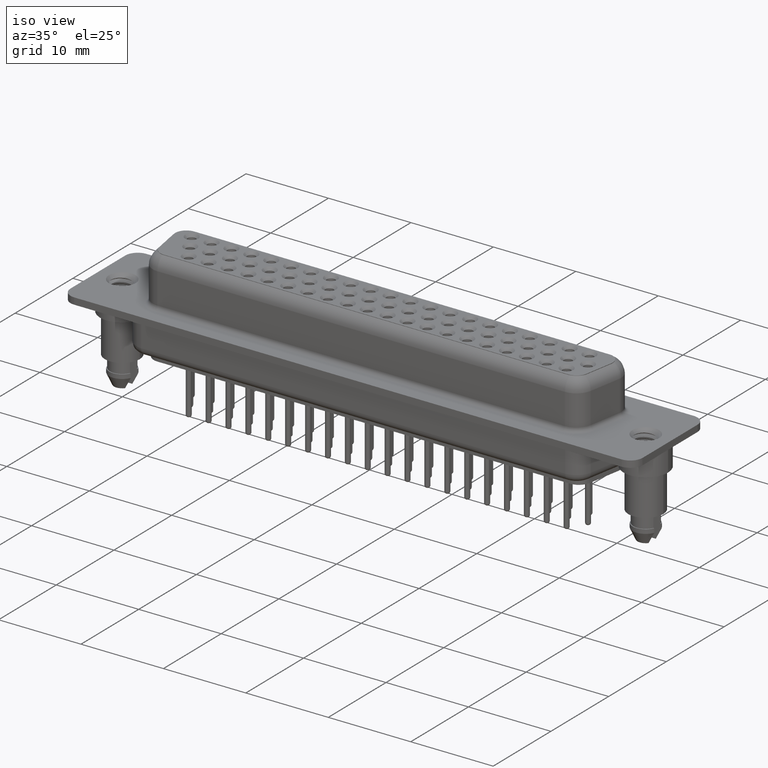
[diagram: clean part render]
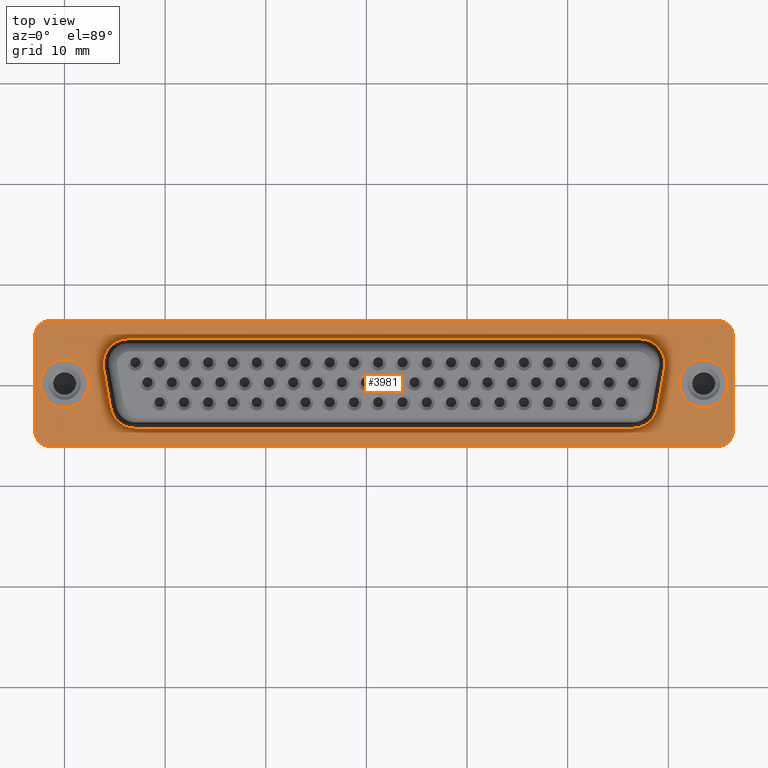
[diagram: tour spotlight — one face highlighted and labeled with its STEP entity id]
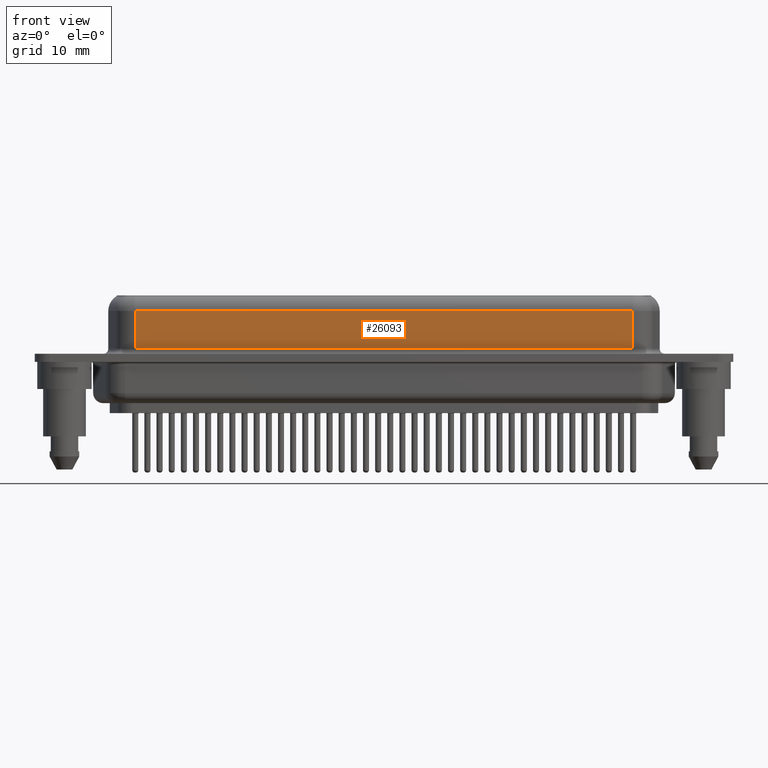
[diagram: tour spotlight — one face highlighted and labeled with its STEP entity id]
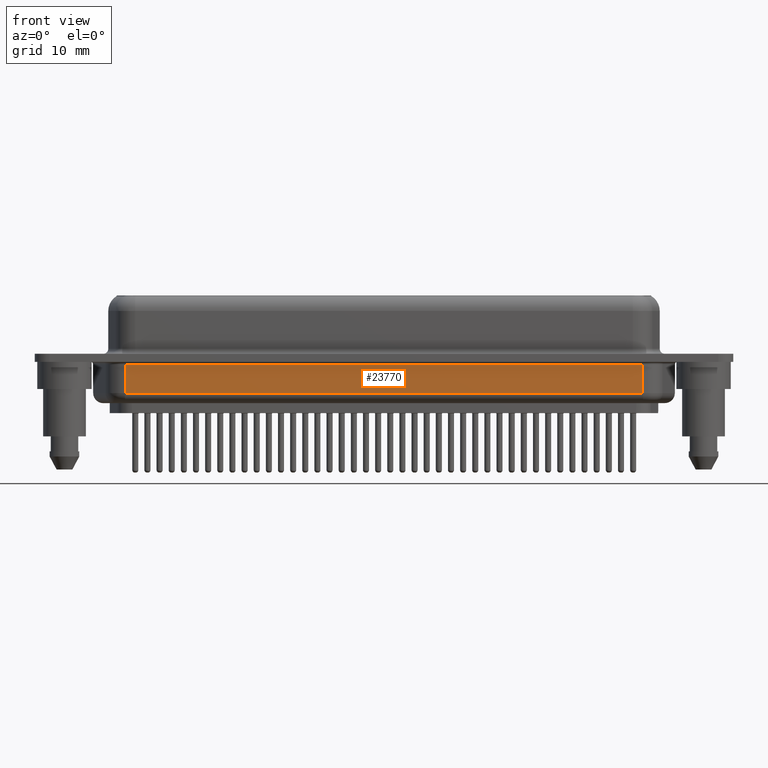
[diagram: tour spotlight — one face highlighted and labeled with its STEP entity id]
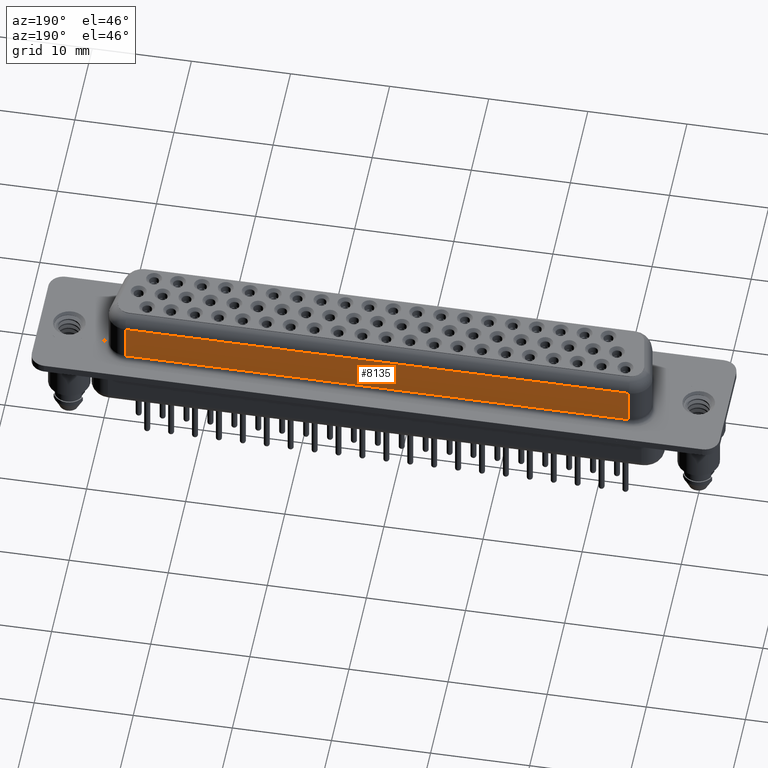
[diagram: tour spotlight — one face highlighted and labeled with its STEP entity id]
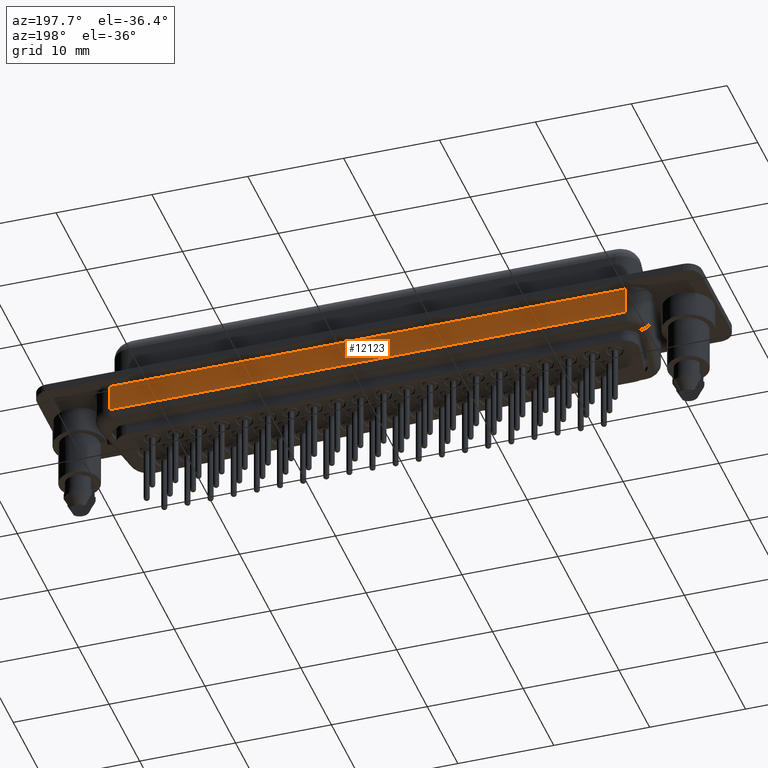
[diagram: tour spotlight — one face highlighted and labeled with its STEP entity id]
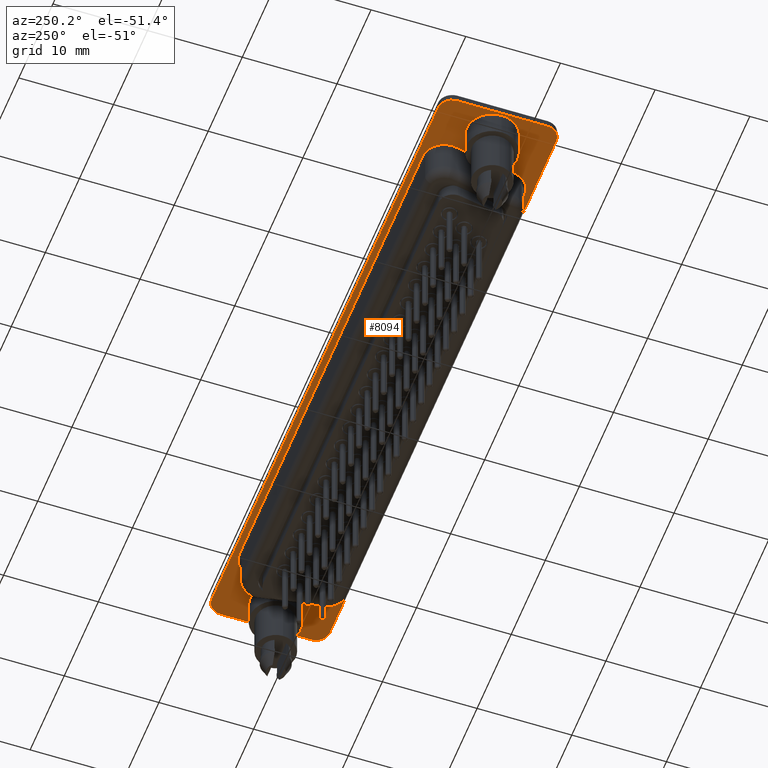
[diagram: tour spotlight — one face highlighted and labeled with its STEP entity id]
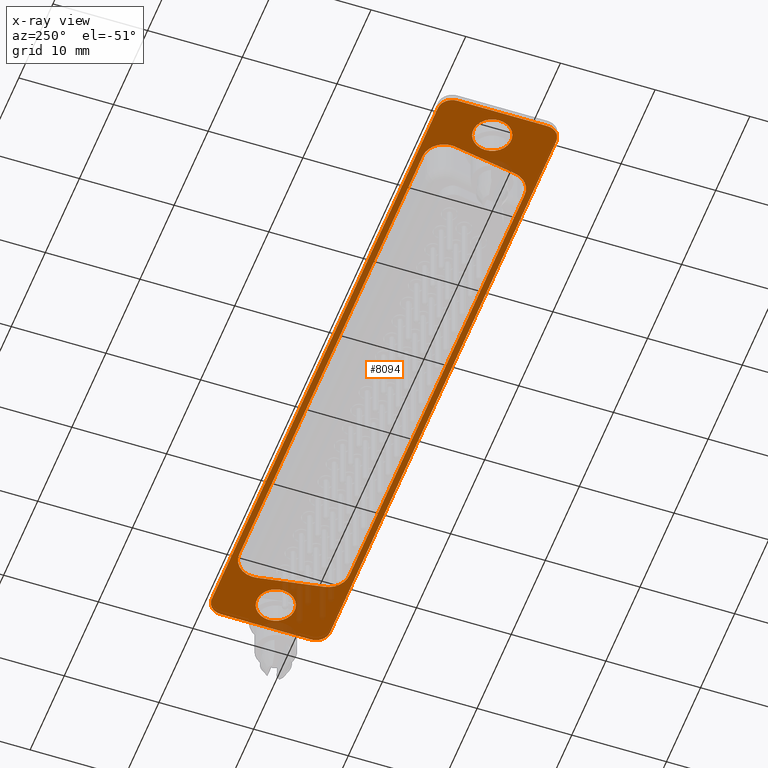
[diagram: x-ray of the same camera — body ghosted, this tour face saturated]
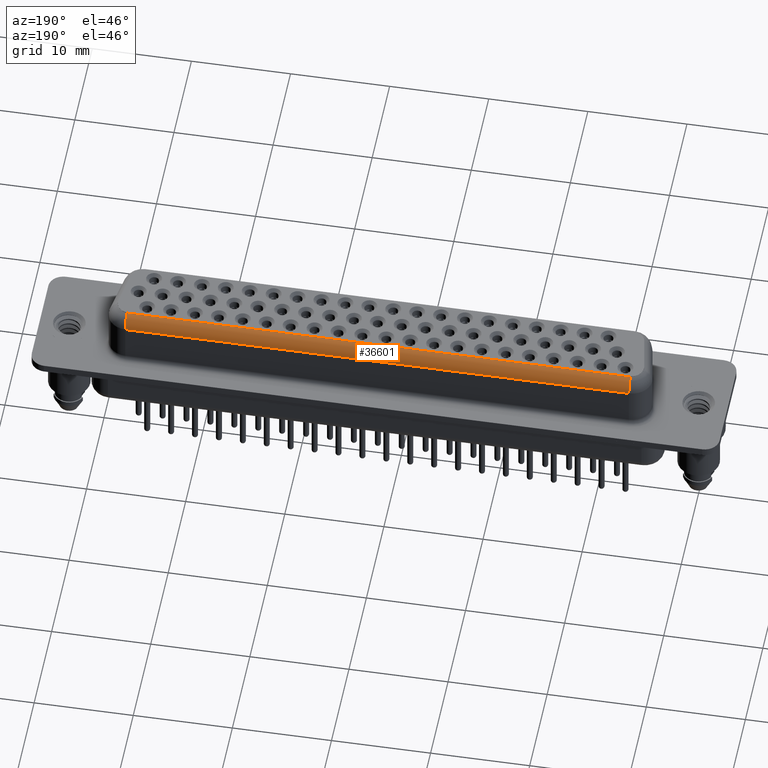
[diagram: tour spotlight — one face highlighted and labeled with its STEP entity id]
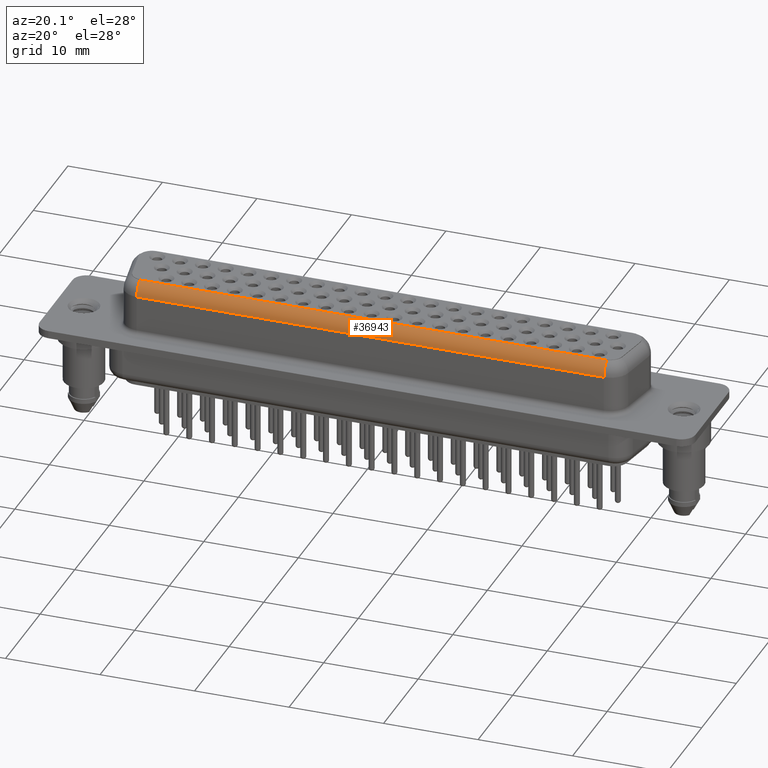
[diagram: tour spotlight — one face highlighted and labeled with its STEP entity id]
A machine part: a face-by-face anatomy tour. The part has 3739 B-rep faces; the first image is the clean iso view, then the 8 largest visible faces are spotlighted one at a time (largest first), each with its STEP entity span.

Face 1 — top view, entity #3981. In plain terms, the highlighted planar face has unit normal (0, 0, 1).
Definition (entity closure, byte-faithful):
#20 = ORIENTED_EDGE ( 'NONE', *, *, #11740, .T. ) ;
#77 = DIRECTION ( 'NONE',  ( -0.0000000000000000000, -0.0000000000000000000, -1.000000000000000000 ) ) ;
#492 = CIRCLE ( 'NONE', #27390, 2.499999999999995115 ) ;
#758 = VECTOR ( 'NONE', #1192, 999.9999999999998863 ) ;
#917 = CARTESIAN_POINT ( 'NONE',  ( -2.950000000000011724, -4.750000000000006217, 0.4000000000000000222 ) ) ;
#1192 = DIRECTION ( 'NONE',  ( -0.1736481776669266675, -0.9848077530122087975, 0.0000000000000000000 ) ) ;
#1236 = CARTESIAN_POINT ( 'NONE',  ( 59.61201938253052646, 1.515879555832687853, 0.4000000000000000222 ) ) ;
#1530 = CIRCLE ( 'NONE', #27165, 1.500000000000001332 ) ;
#1546 = FACE_BOUND ( 'NONE', #33689, .T. ) ;
#1615 = VECTOR ( 'NONE', #20684, 1000.000000000000000 ) ;
#1661 = EDGE_CURVE ( 'NONE', #19841, #30881, #492, .T. ) ;
#1742 = VECTOR ( 'NONE', #30633, 999.9999999999998863 ) ;
#1818 = CARTESIAN_POINT ( 'NONE',  ( 59.64999999999999858, 1.949999999999996847, 0.3999999999999998557 ) ) ;
#2383 = ORIENTED_EDGE ( 'NONE', *, *, #1661, .T. ) ;
#2512 = ORIENTED_EDGE ( 'NONE', *, *, #19060, .F. ) ;
#3057 = VERTEX_POINT ( 'NONE', #28646 ) ;
#3072 = VERTEX_POINT ( 'NONE', #20251 ) ;
#3576 = CIRCLE ( 'NONE', #11715, 2.399999999999999467 ) ;
#3589 = ORIENTED_EDGE ( 'NONE', *, *, #24970, .T. ) ;
#3893 = VECTOR ( 'NONE', #10215, 1000.000000000000000 ) ;
#3939 = VERTEX_POINT ( 'NONE', #4488 ) ;
#3981 = ADVANCED_FACE ( 'NONE', ( #1546, #17034, #25443, #16453 ), #23308, .T. ) ;
#3987 = CARTESIAN_POINT ( 'NONE',  ( 2.400000000000000355, 0.0000000000000000000, 0.4000000000000000222 ) ) ;
#4404 = CARTESIAN_POINT ( 'NONE',  ( 58.92434415776752132, -2.384120444167315611, 0.4000000000000000222 ) ) ;
#4488 = CARTESIAN_POINT ( 'NONE',  ( 4.575655842232466242, -2.384120444167310726, 0.4000000000000000222 ) ) ;
#4578 = DIRECTION ( 'NONE',  ( 1.000000000000000000, 0.0000000000000000000, 0.0000000000000000000 ) ) ;
#4888 = CARTESIAN_POINT ( 'NONE',  ( 64.94999999999998863, 4.750000000000003553, 0.4000000000000000222 ) ) ;
#4948 = ORIENTED_EDGE ( 'NONE', *, *, #27686, .T. ) ;
#5535 = CARTESIAN_POINT ( 'NONE',  ( 56.46232477523700766, -4.450000000000006395, 0.4000000000000000222 ) ) ;
#5655 = EDGE_LOOP ( 'NONE', ( #4948, #3589, #7232, #7874, #21188, #29775, #7090, #9410 ) ) ;
#5720 = DIRECTION ( 'NONE',  ( 1.000000000000000000, 0.0000000000000000000, 0.0000000000000000000 ) ) ;
#5906 = CIRCLE ( 'NONE', #10290, 2.400000000000000355 ) ;
#6153 = AXIS2_PLACEMENT_3D ( 'NONE', #4888, #28552, #31294 ) ;
#6344 = CARTESIAN_POINT ( 'NONE',  ( -1.450000000000010392, 4.749999999999995559, 0.4000000000000000222 ) ) ;
#6353 = ORIENTED_EDGE ( 'NONE', *, *, #36111, .T. ) ;
#6533 = DIRECTION ( 'NONE',  ( 1.000000000000000000, 0.0000000000000000000, 0.0000000000000000000 ) ) ;
#6677 = EDGE_CURVE ( 'NONE', #29436, #3072, #33286, .T. ) ;
#6770 = LINE ( 'NONE', #20556, #1742 ) ;
#6873 = DIRECTION ( 'NONE',  ( 0.0000000000000000000, 0.0000000000000000000, 1.000000000000000000 ) ) ;
#6969 = CIRCLE ( 'NONE', #14474, 2.400000000000000355 ) ;
#6976 = CIRCLE ( 'NONE', #12607, 2.499999999999995115 ) ;
#7090 = ORIENTED_EDGE ( 'NONE', *, *, #33180, .T. ) ;
#7232 = ORIENTED_EDGE ( 'NONE', *, *, #6677, .T. ) ;
#7264 = ORIENTED_EDGE ( 'NONE', *, *, #29127, .T. ) ;
#7283 = CIRCLE ( 'NONE', #22921, 2.399999999999999467 ) ;
#7874 = ORIENTED_EDGE ( 'NONE', *, *, #14004, .T. ) ;
#7999 = ORIENTED_EDGE ( 'NONE', *, *, #20451, .T. ) ;
#8034 = ORIENTED_EDGE ( 'NONE', *, *, #15828, .F. ) ;
#8260 = ORIENTED_EDGE ( 'NONE', *, *, #34418, .T. ) ;
#8500 = CARTESIAN_POINT ( 'NONE',  ( 64.94999999999998863, 4.449999999999997513, 0.4000000000000000222 ) ) ;
#9363 = CARTESIAN_POINT ( 'NONE',  ( 0.0000000000000000000, 0.0000000000000000000, 0.4000000000000000222 ) ) ;
#9410 = ORIENTED_EDGE ( 'NONE', *, *, #26475, .T. ) ;
#9550 = EDGE_LOOP ( 'NONE', ( #7999, #2383, #11413, #6353, #7264, #8260, #19138, #34260, #20 ) ) ;
#9680 = VERTEX_POINT ( 'NONE', #4404 ) ;
#10005 = CARTESIAN_POINT ( 'NONE',  ( 64.94999999999998863, 4.750000000000003553, 0.4000000000000000222 ) ) ;
#10215 = DIRECTION ( 'NONE',  ( 1.000000000000000000, 1.175640909924041119E-16, -0.0000000000000000000 ) ) ;
#10290 = AXIS2_PLACEMENT_3D ( 'NONE', #9363, #33415, #21314 ) ;
#10406 = DIRECTION ( 'NONE',  ( 1.000000000000000000, 8.673617379884037444E-16, 0.0000000000000000000 ) ) ;
#10413 = LINE ( 'NONE', #10610, #758 ) ;
#10448 = VERTEX_POINT ( 'NONE', #13163 ) ;
#10588 = LINE ( 'NONE', #25446, #12422 ) ;
#10610 = CARTESIAN_POINT ( 'NONE',  ( 60.32604636212139582, 5.565327783903041947, 0.4000000000000000222 ) ) ;
#10885 = DIRECTION ( 'NONE',  ( 1.000000000000000000, 0.0000000000000000000, 0.0000000000000000000 ) ) ;
#11179 = EDGE_LOOP ( 'NONE', ( #12917, #30764 ) ) ;
#11413 = ORIENTED_EDGE ( 'NONE', *, *, #17079, .T. ) ;
#11715 = AXIS2_PLACEMENT_3D ( 'NONE', #38592, #24114, #5720 ) ;
#11736 = CARTESIAN_POINT ( 'NONE',  ( 64.94999999999998863, -4.749999999999998224, 0.4000000000000000222 ) ) ;
#11740 = EDGE_CURVE ( 'NONE', #29172, #22227, #13589, .T. ) ;
#12009 = EDGE_CURVE ( 'NONE', #3057, #34052, #3576, .T. ) ;
#12052 = DIRECTION ( 'NONE',  ( 1.000000000000000000, 0.0000000000000000000, 0.0000000000000000000 ) ) ;
#12240 = CARTESIAN_POINT ( 'NONE',  ( 7.037675224762990567, -1.950000000000002176, 0.3999999999999999667 ) ) ;
#12422 = VECTOR ( 'NONE', #25634, 1000.000000000000000 ) ;
#12500 = AXIS2_PLACEMENT_3D ( 'NONE', #10005, #6873, #19386 ) ;
#12524 = EDGE_CURVE ( 'NONE', #3939, #29172, #6770, .T. ) ;
#12607 = AXIS2_PLACEMENT_3D ( 'NONE', #23818, #77, #12052 ) ;
#12917 = ORIENTED_EDGE ( 'NONE', *, *, #21940, .F. ) ;
#13163 = CARTESIAN_POINT ( 'NONE',  ( 64.94999999999998863, 6.250000000000003553, 0.4000000000000000222 ) ) ;
#13360 = DIRECTION ( 'NONE',  ( -0.0000000000000000000, -0.0000000000000000000, -1.000000000000000000 ) ) ;
#13429 = CARTESIAN_POINT ( 'NONE',  ( 63.50000000000000000, 1.166476076187854022E-14, 0.4000000000000000222 ) ) ;
#13589 = CIRCLE ( 'NONE', #24224, 2.500000000000001332 ) ;
#14004 = EDGE_CURVE ( 'NONE', #3072, #17770, #24837, .T. ) ;
#14474 = AXIS2_PLACEMENT_3D ( 'NONE', #17925, #14594, #17728 ) ;
#14561 = CARTESIAN_POINT ( 'NONE',  ( -2.400000000000000355, 2.939152317953647599E-16, 0.4000000000000000222 ) ) ;
#14594 = DIRECTION ( 'NONE',  ( 0.0000000000000000000, 0.0000000000000000000, 1.000000000000000000 ) ) ;
#14996 = VECTOR ( 'NONE', #27926, 1000.000000000000000 ) ;
#15454 = DIRECTION ( 'NONE',  ( 1.000000000000000000, 8.673617379884052235E-16, 0.0000000000000000000 ) ) ;
#15528 = DIRECTION ( 'NONE',  ( 0.0000000000000000000, 0.0000000000000000000, 1.000000000000000000 ) ) ;
#15828 = EDGE_CURVE ( 'NONE', #37080, #35807, #6969, .T. ) ;
#15938 = CARTESIAN_POINT ( 'NONE',  ( 6.350000000000005862, 4.449999999999997513, 0.4000000000000000222 ) ) ;
#16453 = FACE_OUTER_BOUND ( 'NONE', #5655, .T. ) ;
#16814 = CARTESIAN_POINT ( 'NONE',  ( 64.94999999999998863, -6.249999999999998224, 0.4000000000000000222 ) ) ;
#16929 = DIRECTION ( 'NONE',  ( -1.000000000000000000, -1.306267677693378994E-16, 0.0000000000000000000 ) ) ;
#17034 = FACE_BOUND ( 'NONE', #11179, .T. ) ;
#17079 = EDGE_CURVE ( 'NONE', #30881, #22224, #6976, .T. ) ;
#17326 = DIRECTION ( 'NONE',  ( 1.000000000000000000, -0.0000000000000000000, -0.0000000000000000000 ) ) ;
#17327 = DIRECTION ( 'NONE',  ( -1.000000000000000000, 0.0000000000000000000, 0.0000000000000000000 ) ) ;
#17728 = DIRECTION ( 'NONE',  ( 1.000000000000000000, 0.0000000000000000000, 0.0000000000000000000 ) ) ;
#17770 = VERTEX_POINT ( 'NONE', #32148 ) ;
#17925 = CARTESIAN_POINT ( 'NONE',  ( 0.0000000000000000000, 0.0000000000000000000, 0.4000000000000000222 ) ) ;
#17926 = CARTESIAN_POINT ( 'NONE',  ( 64.94999999999998863, -4.450000000000007283, 0.4000000000000000222 ) ) ;
#18145 = CIRCLE ( 'NONE', #12500, 1.500000000000001332 ) ;
#18454 = CIRCLE ( 'NONE', #31533, 1.500000000000000000 ) ;
#19060 = EDGE_CURVE ( 'NONE', #35807, #37080, #5906, .T. ) ;
#19138 = ORIENTED_EDGE ( 'NONE', *, *, #28843, .T. ) ;
#19386 = DIRECTION ( 'NONE',  ( 1.000000000000000000, 0.0000000000000000000, 0.0000000000000000000 ) ) ;
#19394 = DIRECTION ( 'NONE',  ( -0.0000000000000000000, -0.0000000000000000000, -1.000000000000000000 ) ) ;
#19436 = AXIS2_PLACEMENT_3D ( 'NONE', #12240, #19394, #10406 ) ;
#19457 = LINE ( 'NONE', #23004, #24888 ) ;
#19841 = VERTEX_POINT ( 'NONE', #26154 ) ;
#20220 = VERTEX_POINT ( 'NONE', #25527 ) ;
#20251 = CARTESIAN_POINT ( 'NONE',  ( -2.950000000000011724, 4.749999999999995559, 0.4000000000000000222 ) ) ;
#20450 = LINE ( 'NONE', #8500, #29662 ) ;
#20451 = EDGE_CURVE ( 'NONE', #22227, #19841, #20450, .T. ) ;
#20556 = CARTESIAN_POINT ( 'NONE',  ( 5.176158627786302091, -5.789740974508741367, 0.4000000000000000222 ) ) ;
#20684 = DIRECTION ( 'NONE',  ( -1.000000000000000000, 1.052950395250806378E-16, -0.0000000000000000000 ) ) ;
#20967 = CARTESIAN_POINT ( 'NONE',  ( 56.46232477523700766, -1.950000000000005507, 0.3999999999999999667 ) ) ;
#21188 = ORIENTED_EDGE ( 'NONE', *, *, #33555, .T. ) ;
#21314 = DIRECTION ( 'NONE',  ( 1.000000000000000000, 0.0000000000000000000, 0.0000000000000000000 ) ) ;
#21862 = CARTESIAN_POINT ( 'NONE',  ( -1.450000000000010170, -6.250000000000004441, 0.4000000000000000222 ) ) ;
#21940 = EDGE_CURVE ( 'NONE', #34052, #3057, #7283, .T. ) ;
#22224 = VERTEX_POINT ( 'NONE', #1236 ) ;
#22227 = VERTEX_POINT ( 'NONE', #15938 ) ;
#22462 = DIRECTION ( 'NONE',  ( 0.0000000000000000000, 0.0000000000000000000, 1.000000000000000000 ) ) ;
#22921 = AXIS2_PLACEMENT_3D ( 'NONE', #13429, #22462, #10885 ) ;
#23004 = CARTESIAN_POINT ( 'NONE',  ( 64.94999999999998863, 6.250000000000003553, 0.4000000000000000222 ) ) ;
#23308 = PLANE ( 'NONE',  #6153 ) ;
#23628 = CARTESIAN_POINT ( 'NONE',  ( 7.037675224762990567, -4.450000000000002842, 0.4000000000000000222 ) ) ;
#23818 = CARTESIAN_POINT ( 'NONE',  ( 57.15000000000000568, 1.949999999999996847, 0.3999999999999999667 ) ) ;
#24114 = DIRECTION ( 'NONE',  ( 0.0000000000000000000, 0.0000000000000000000, 1.000000000000000000 ) ) ;
#24224 = AXIS2_PLACEMENT_3D ( 'NONE', #31331, #13360, #25289 ) ;
#24837 = LINE ( 'NONE', #917, #14996 ) ;
#24888 = VECTOR ( 'NONE', #16929, 1000.000000000000000 ) ;
#24970 = EDGE_CURVE ( 'NONE', #10448, #29436, #19457, .T. ) ;
#25049 = CARTESIAN_POINT ( 'NONE',  ( 65.90000000000000568, 1.166476076187854022E-14, 0.4000000000000000222 ) ) ;
#25121 = CIRCLE ( 'NONE', #28214, 2.499999999999995115 ) ;
#25289 = DIRECTION ( 'NONE',  ( 1.000000000000000000, 0.0000000000000000000, 0.0000000000000000000 ) ) ;
#25443 = FACE_BOUND ( 'NONE', #9550, .T. ) ;
#25446 = CARTESIAN_POINT ( 'NONE',  ( 66.44999999999998863, -4.749999999999998224, 0.4000000000000000222 ) ) ;
#25527 = CARTESIAN_POINT ( 'NONE',  ( 66.44999999999998863, 4.750000000000003553, 0.4000000000000000222 ) ) ;
#25634 = DIRECTION ( 'NONE',  ( 0.0000000000000000000, 1.000000000000000000, 0.0000000000000000000 ) ) ;
#26154 = CARTESIAN_POINT ( 'NONE',  ( 57.15000000000000568, 4.449999999999997513, 0.4000000000000000222 ) ) ;
#26215 = VERTEX_POINT ( 'NONE', #5535 ) ;
#26475 = EDGE_CURVE ( 'NONE', #37375, #20220, #10588, .T. ) ;
#26693 = CARTESIAN_POINT ( 'NONE',  ( -1.450000000000010392, -4.750000000000006217, 0.4000000000000000222 ) ) ;
#27165 = AXIS2_PLACEMENT_3D ( 'NONE', #11736, #32467, #36170 ) ;
#27390 = AXIS2_PLACEMENT_3D ( 'NONE', #28250, #31378, #4578 ) ;
#27686 = EDGE_CURVE ( 'NONE', #20220, #10448, #18145, .T. ) ;
#27926 = DIRECTION ( 'NONE',  ( -0.0000000000000000000, -1.000000000000000000, -0.0000000000000000000 ) ) ;
#28183 = CARTESIAN_POINT ( 'NONE',  ( 64.94999999999998863, -6.249999999999996447, 0.4000000000000000222 ) ) ;
#28214 = AXIS2_PLACEMENT_3D ( 'NONE', #20967, #29554, #15454 ) ;
#28250 = CARTESIAN_POINT ( 'NONE',  ( 57.15000000000000568, 1.949999999999996847, 0.3999999999999999667 ) ) ;
#28552 = DIRECTION ( 'NONE',  ( 0.0000000000000000000, 0.0000000000000000000, 1.000000000000000000 ) ) ;
#28584 = CARTESIAN_POINT ( 'NONE',  ( 66.44999999999998863, -4.749999999999998224, 0.4000000000000000222 ) ) ;
#28646 = CARTESIAN_POINT ( 'NONE',  ( 61.10000000000000142, 1.195867599367390394E-14, 0.4000000000000000222 ) ) ;
#28843 = EDGE_CURVE ( 'NONE', #30418, #3939, #36319, .T. ) ;
#29127 = EDGE_CURVE ( 'NONE', #9680, #26215, #25121, .T. ) ;
#29172 = VERTEX_POINT ( 'NONE', #33260 ) ;
#29436 = VERTEX_POINT ( 'NONE', #32244 ) ;
#29483 = VERTEX_POINT ( 'NONE', #16814 ) ;
#29554 = DIRECTION ( 'NONE',  ( -0.0000000000000000000, -0.0000000000000000000, -1.000000000000000000 ) ) ;
#29662 = VECTOR ( 'NONE', #17326, 1000.000000000000000 ) ;
#29775 = ORIENTED_EDGE ( 'NONE', *, *, #31190, .T. ) ;
#30418 = VERTEX_POINT ( 'NONE', #23628 ) ;
#30633 = DIRECTION ( 'NONE',  ( -0.1736481776669235866, 0.9848077530122093526, -0.0000000000000000000 ) ) ;
#30738 = LINE ( 'NONE', #28183, #3893 ) ;
#30764 = ORIENTED_EDGE ( 'NONE', *, *, #12009, .F. ) ;
#30881 = VERTEX_POINT ( 'NONE', #1818 ) ;
#31190 = EDGE_CURVE ( 'NONE', #36810, #29483, #30738, .T. ) ;
#31294 = DIRECTION ( 'NONE',  ( 1.000000000000000000, 0.0000000000000000000, -0.0000000000000000000 ) ) ;
#31331 = CARTESIAN_POINT ( 'NONE',  ( 6.350000000000005862, 1.949999999999996847, 0.3999999999999999667 ) ) ;
#31378 = DIRECTION ( 'NONE',  ( -0.0000000000000000000, -0.0000000000000000000, -1.000000000000000000 ) ) ;
#31533 = AXIS2_PLACEMENT_3D ( 'NONE', #26693, #38634, #17327 ) ;
#32148 = CARTESIAN_POINT ( 'NONE',  ( -2.950000000000010392, -4.750000000000006217, 0.4000000000000000222 ) ) ;
#32244 = CARTESIAN_POINT ( 'NONE',  ( -1.450000000000010614, 6.249999999999996447, 0.4000000000000000222 ) ) ;
#32467 = DIRECTION ( 'NONE',  ( 0.0000000000000000000, 0.0000000000000000000, 1.000000000000000000 ) ) ;
#33180 = EDGE_CURVE ( 'NONE', #29483, #37375, #1530, .T. ) ;
#33260 = CARTESIAN_POINT ( 'NONE',  ( 3.887980617469481981, 1.515879555832687853, 0.4000000000000000222 ) ) ;
#33286 = CIRCLE ( 'NONE', #37050, 1.500000000000000444 ) ;
#33415 = DIRECTION ( 'NONE',  ( 0.0000000000000000000, 0.0000000000000000000, 1.000000000000000000 ) ) ;
#33555 = EDGE_CURVE ( 'NONE', #17770, #36810, #18454, .T. ) ;
#33689 = EDGE_LOOP ( 'NONE', ( #2512, #8034 ) ) ;
#34052 = VERTEX_POINT ( 'NONE', #25049 ) ;
#34260 = ORIENTED_EDGE ( 'NONE', *, *, #12524, .T. ) ;
#34418 = EDGE_CURVE ( 'NONE', #26215, #30418, #37001, .T. ) ;
#35807 = VERTEX_POINT ( 'NONE', #3987 ) ;
#36111 = EDGE_CURVE ( 'NONE', #22224, #9680, #10413, .T. ) ;
#36170 = DIRECTION ( 'NONE',  ( 1.000000000000000000, 0.0000000000000000000, 0.0000000000000000000 ) ) ;
#36319 = CIRCLE ( 'NONE', #19436, 2.499999999999999556 ) ;
#36810 = VERTEX_POINT ( 'NONE', #21862 ) ;
#37001 = LINE ( 'NONE', #17926, #1615 ) ;
#37050 = AXIS2_PLACEMENT_3D ( 'NONE', #6344, #15528, #6533 ) ;
#37080 = VERTEX_POINT ( 'NONE', #14561 ) ;
#37375 = VERTEX_POINT ( 'NONE', #28584 ) ;
#38592 = CARTESIAN_POINT ( 'NONE',  ( 63.50000000000000000, 1.166476076187854022E-14, 0.4000000000000000222 ) ) ;
#38634 = DIRECTION ( 'NONE',  ( 0.0000000000000000000, 0.0000000000000000000, 1.000000000000000000 ) ) ;

Face 2 — front view, entity #26093. In plain terms, the highlighted planar face has unit normal (0, 1, 0).
Definition (entity closure, byte-faithful):
#1166 = CARTESIAN_POINT ( 'NONE',  ( 56.46232477523700766, -3.950000000000006395, 4.650000000000000355 ) ) ;
#1473 = CARTESIAN_POINT ( 'NONE',  ( 7.037675224762990567, -3.950000000000001954, 6.400000000000000355 ) ) ;
#3346 = DIRECTION ( 'NONE',  ( 1.052950395250806378E-16, 1.000000000000000000, -0.0000000000000000000 ) ) ;
#3882 = VERTEX_POINT ( 'NONE', #1166 ) ;
#5288 = CARTESIAN_POINT ( 'NONE',  ( 7.037675224762990567, -3.950000000000001954, 4.650000000000000355 ) ) ;
#5436 = ORIENTED_EDGE ( 'NONE', *, *, #19095, .T. ) ;
#6684 = CARTESIAN_POINT ( 'NONE',  ( 56.46232477523700766, -3.950000000000006395, 0.8999999999999998002 ) ) ;
#10450 = VERTEX_POINT ( 'NONE', #33526 ) ;
#10555 = LINE ( 'NONE', #38525, #29442 ) ;
#14979 = VERTEX_POINT ( 'NONE', #5288 ) ;
#16146 = CARTESIAN_POINT ( 'NONE',  ( 7.037675224762990567, -3.950000000000001954, 0.8999999999999998002 ) ) ;
#16385 = LINE ( 'NONE', #1473, #34623 ) ;
#16387 = ORIENTED_EDGE ( 'NONE', *, *, #27770, .T. ) ;
#16527 = EDGE_CURVE ( 'NONE', #3882, #14979, #10555, .T. ) ;
#17666 = DIRECTION ( 'NONE',  ( -1.000000000000000000, 1.052950395250806378E-16, 0.0000000000000000000 ) ) ;
#18318 = VECTOR ( 'NONE', #32795, 1000.000000000000000 ) ;
#18746 = VECTOR ( 'NONE', #33687, 1000.000000000000000 ) ;
#19095 = EDGE_CURVE ( 'NONE', #14979, #35975, #16385, .T. ) ;
#19698 = DIRECTION ( 'NONE',  ( -0.0000000000000000000, -0.0000000000000000000, -1.000000000000000000 ) ) ;
#20619 = PLANE ( 'NONE',  #25504 ) ;
#24315 = EDGE_LOOP ( 'NONE', ( #29142, #32495, #5436, #16387 ) ) ;
#25504 = AXIS2_PLACEMENT_3D ( 'NONE', #32533, #3346, #17666 ) ;
#26093 = ADVANCED_FACE ( 'NONE', ( #29783 ), #20619, .F. ) ;
#27483 = CARTESIAN_POINT ( 'NONE',  ( 56.46232477523700766, -3.950000000000006395, 6.400000000000000355 ) ) ;
#27770 = EDGE_CURVE ( 'NONE', #35975, #10450, #36422, .T. ) ;
#28908 = DIRECTION ( 'NONE',  ( -1.000000000000000000, 1.052950395250806378E-16, -0.0000000000000000000 ) ) ;
#29142 = ORIENTED_EDGE ( 'NONE', *, *, #30543, .F. ) ;
#29442 = VECTOR ( 'NONE', #28908, 1000.000000000000000 ) ;
#29783 = FACE_OUTER_BOUND ( 'NONE', #24315, .T. ) ;
#30543 = EDGE_CURVE ( 'NONE', #3882, #10450, #35721, .T. ) ;
#32495 = ORIENTED_EDGE ( 'NONE', *, *, #16527, .T. ) ;
#32533 = CARTESIAN_POINT ( 'NONE',  ( 56.46232477523700766, -3.950000000000006395, 6.400000000000000355 ) ) ;
#32795 = DIRECTION ( 'NONE',  ( -0.0000000000000000000, -0.0000000000000000000, -1.000000000000000000 ) ) ;
#33526 = CARTESIAN_POINT ( 'NONE',  ( 56.46232477523700766, -3.950000000000006395, 0.8999999999999998002 ) ) ;
#33687 = DIRECTION ( 'NONE',  ( 1.000000000000000000, -1.052950395250806378E-16, 0.0000000000000000000 ) ) ;
#34623 = VECTOR ( 'NONE', #19698, 1000.000000000000000 ) ;
#35721 = LINE ( 'NONE', #27483, #18318 ) ;
#35975 = VERTEX_POINT ( 'NONE', #16146 ) ;
#36422 = LINE ( 'NONE', #6684, #18746 ) ;
#38525 = CARTESIAN_POINT ( 'NONE',  ( 56.46232477523700766, -3.950000000000006395, 4.650000000000000355 ) ) ;

Face 3 — front view, entity #23770. In plain terms, the highlighted planar face has unit normal (0, 1, 0).
Definition (entity closure, byte-faithful):
#1246 = DIRECTION ( 'NONE',  ( -1.000000000000000000, 1.011751915031820995E-16, 0.0000000000000000000 ) ) ;
#1277 = EDGE_CURVE ( 'NONE', #16715, #23882, #20978, .T. ) ;
#4096 = ORIENTED_EDGE ( 'NONE', *, *, #1277, .T. ) ;
#4766 = VECTOR ( 'NONE', #27291, 1000.000000000000000 ) ;
#4966 = CARTESIAN_POINT ( 'NONE',  ( 6.031390770746678953, -5.350000000000002309, -4.500000000000000000 ) ) ;
#5428 = VERTEX_POINT ( 'NONE', #23518 ) ;
#6934 = LINE ( 'NONE', #18678, #4766 ) ;
#7086 = CARTESIAN_POINT ( 'NONE',  ( 6.031390770746678953, -5.350000000000002309, -3.499999999999999556 ) ) ;
#11777 = DIRECTION ( 'NONE',  ( -0.0000000000000000000, -0.0000000000000000000, 1.000000000000000000 ) ) ;
#12333 = VECTOR ( 'NONE', #11777, 1000.000000000000000 ) ;
#15246 = VECTOR ( 'NONE', #19020, 1000.000000000000000 ) ;
#15521 = AXIS2_PLACEMENT_3D ( 'NONE', #4966, #16149, #1246 ) ;
#16048 = ORIENTED_EDGE ( 'NONE', *, *, #22066, .T. ) ;
#16149 = DIRECTION ( 'NONE',  ( 1.011751915031820995E-16, 1.000000000000000000, 0.0000000000000000000 ) ) ;
#16715 = VERTEX_POINT ( 'NONE', #29900 ) ;
#17116 = CARTESIAN_POINT ( 'NONE',  ( 57.46860922925331749, -5.350000000000014744, -0.6500000000000000222 ) ) ;
#17475 = VECTOR ( 'NONE', #38584, 1000.000000000000000 ) ;
#17831 = CARTESIAN_POINT ( 'NONE',  ( 6.031390770746678953, -5.350000000000002309, -3.499999999999999556 ) ) ;
#18427 = VERTEX_POINT ( 'NONE', #17831 ) ;
#18678 = CARTESIAN_POINT ( 'NONE',  ( 6.031390770746678953, -5.350000000000002309, -0.6500000000000000222 ) ) ;
#19020 = DIRECTION ( 'NONE',  ( 1.000000000000000000, -1.011751915031820995E-16, -0.0000000000000000000 ) ) ;
#20978 = LINE ( 'NONE', #23335, #12333 ) ;
#22066 = EDGE_CURVE ( 'NONE', #23882, #5428, #6934, .T. ) ;
#23335 = CARTESIAN_POINT ( 'NONE',  ( 57.46860922925331749, -5.350000000000014744, -4.500000000000000000 ) ) ;
#23518 = CARTESIAN_POINT ( 'NONE',  ( 6.031390770746678953, -5.350000000000002309, -0.6500000000000000222 ) ) ;
#23770 = ADVANCED_FACE ( 'NONE', ( #31767 ), #28237, .F. ) ;
#23882 = VERTEX_POINT ( 'NONE', #17116 ) ;
#24370 = EDGE_CURVE ( 'NONE', #18427, #5428, #38198, .T. ) ;
#26393 = ORIENTED_EDGE ( 'NONE', *, *, #24370, .F. ) ;
#26445 = CARTESIAN_POINT ( 'NONE',  ( 6.031390770746678953, -5.350000000000002309, -4.500000000000000000 ) ) ;
#27291 = DIRECTION ( 'NONE',  ( -1.000000000000000000, 1.011751915031820995E-16, 0.0000000000000000000 ) ) ;
#28237 = PLANE ( 'NONE',  #15521 ) ;
#28388 = LINE ( 'NONE', #7086, #15246 ) ;
#29900 = CARTESIAN_POINT ( 'NONE',  ( 57.46860922925331749, -5.350000000000014744, -3.499999999999999556 ) ) ;
#31767 = FACE_OUTER_BOUND ( 'NONE', #36945, .T. ) ;
#32434 = EDGE_CURVE ( 'NONE', #18427, #16715, #28388, .T. ) ;
#36025 = ORIENTED_EDGE ( 'NONE', *, *, #32434, .T. ) ;
#36945 = EDGE_LOOP ( 'NONE', ( #26393, #36025, #4096, #16048 ) ) ;
#38198 = LINE ( 'NONE', #26445, #17475 ) ;
#38584 = DIRECTION ( 'NONE',  ( -0.0000000000000000000, -0.0000000000000000000, 1.000000000000000000 ) ) ;

Face 4 — auxiliary view, entity #8135. In plain terms, the highlighted planar face has unit normal (0, -1, 0).
Definition (entity closure, byte-faithful):
#102 = DIRECTION ( 'NONE',  ( 0.0000000000000000000, -0.0000000000000000000, -1.000000000000000000 ) ) ;
#1182 = CARTESIAN_POINT ( 'NONE',  ( 6.350000000000005862, 3.949999999999997069, 4.650000000000000355 ) ) ;
#2055 = CARTESIAN_POINT ( 'NONE',  ( 6.350000000000005862, 3.949999999999997069, 0.8999999999999998002 ) ) ;
#3505 = VERTEX_POINT ( 'NONE', #17483 ) ;
#4122 = LINE ( 'NONE', #1182, #8844 ) ;
#4215 = DIRECTION ( 'NONE',  ( -1.000000000000000000, 0.0000000000000000000, 0.0000000000000000000 ) ) ;
#5171 = EDGE_CURVE ( 'NONE', #3505, #31941, #36609, .T. ) ;
#5396 = EDGE_LOOP ( 'NONE', ( #20998, #34936, #7578, #5826 ) ) ;
#5633 = CARTESIAN_POINT ( 'NONE',  ( 6.350000000000005862, 3.949999999999997069, 6.400000000000000355 ) ) ;
#5826 = ORIENTED_EDGE ( 'NONE', *, *, #28493, .T. ) ;
#7578 = ORIENTED_EDGE ( 'NONE', *, *, #5171, .T. ) ;
#8135 = ADVANCED_FACE ( 'NONE', ( #20516 ), #32432, .F. ) ;
#8769 = DIRECTION ( 'NONE',  ( 0.0000000000000000000, -1.000000000000000000, 0.0000000000000000000 ) ) ;
#8844 = VECTOR ( 'NONE', #37000, 1000.000000000000000 ) ;
#9497 = CARTESIAN_POINT ( 'NONE',  ( 57.15000000000000568, 3.949999999999993516, 0.8999999999999998002 ) ) ;
#9809 = DIRECTION ( 'NONE',  ( -0.0000000000000000000, -0.0000000000000000000, -1.000000000000000000 ) ) ;
#15668 = VECTOR ( 'NONE', #4215, 1000.000000000000000 ) ;
#17310 = CARTESIAN_POINT ( 'NONE',  ( 6.350000000000005862, 3.949999999999997069, 4.650000000000000355 ) ) ;
#17483 = CARTESIAN_POINT ( 'NONE',  ( 57.15000000000000568, 3.949999999999993516, 4.650000000000000355 ) ) ;
#18718 = CARTESIAN_POINT ( 'NONE',  ( 6.350000000000005862, 3.949999999999997069, 0.8999999999999998002 ) ) ;
#19446 = DIRECTION ( 'NONE',  ( -0.0000000000000000000, -0.0000000000000000000, -1.000000000000000000 ) ) ;
#20516 = FACE_OUTER_BOUND ( 'NONE', #5396, .T. ) ;
#20998 = ORIENTED_EDGE ( 'NONE', *, *, #35883, .F. ) ;
#22772 = AXIS2_PLACEMENT_3D ( 'NONE', #5633, #8769, #102 ) ;
#24421 = LINE ( 'NONE', #18718, #15668 ) ;
#24693 = CARTESIAN_POINT ( 'NONE',  ( 57.15000000000000568, 3.949999999999993516, 6.400000000000000355 ) ) ;
#24959 = CARTESIAN_POINT ( 'NONE',  ( 6.350000000000005862, 3.949999999999997069, 6.400000000000000355 ) ) ;
#28144 = VECTOR ( 'NONE', #9809, 1000.000000000000000 ) ;
#28493 = EDGE_CURVE ( 'NONE', #31941, #38428, #24421, .T. ) ;
#28927 = EDGE_CURVE ( 'NONE', #30787, #3505, #4122, .T. ) ;
#30787 = VERTEX_POINT ( 'NONE', #17310 ) ;
#31941 = VERTEX_POINT ( 'NONE', #9497 ) ;
#32432 = PLANE ( 'NONE',  #22772 ) ;
#33696 = VECTOR ( 'NONE', #19446, 1000.000000000000000 ) ;
#34936 = ORIENTED_EDGE ( 'NONE', *, *, #28927, .T. ) ;
#35883 = EDGE_CURVE ( 'NONE', #30787, #38428, #37259, .T. ) ;
#36609 = LINE ( 'NONE', #24693, #28144 ) ;
#37000 = DIRECTION ( 'NONE',  ( 1.000000000000000000, -0.0000000000000000000, -0.0000000000000000000 ) ) ;
#37259 = LINE ( 'NONE', #24959, #33696 ) ;
#38428 = VERTEX_POINT ( 'NONE', #2055 ) ;

Face 5 — auxiliary view, entity #12123. In plain terms, the highlighted planar face has unit normal (0, -1, 0).
Definition (entity closure, byte-faithful):
#120 = EDGE_CURVE ( 'NONE', #36099, #10727, #11415, .T. ) ;
#459 = AXIS2_PLACEMENT_3D ( 'NONE', #13498, #30895, #16260 ) ;
#1898 = LINE ( 'NONE', #4852, #35065 ) ;
#3906 = FACE_OUTER_BOUND ( 'NONE', #18175, .T. ) ;
#4852 = CARTESIAN_POINT ( 'NONE',  ( 58.64999999999999147, 5.350000000000007638, -0.6500000000000000222 ) ) ;
#5227 = VECTOR ( 'NONE', #32344, 1000.000000000000000 ) ;
#5916 = ORIENTED_EDGE ( 'NONE', *, *, #31674, .T. ) ;
#6875 = VERTEX_POINT ( 'NONE', #25113 ) ;
#8554 = VECTOR ( 'NONE', #14976, 1000.000000000000000 ) ;
#9253 = ORIENTED_EDGE ( 'NONE', *, *, #9918, .T. ) ;
#9857 = ORIENTED_EDGE ( 'NONE', *, *, #28270, .T. ) ;
#9918 = EDGE_CURVE ( 'NONE', #36099, #19975, #26521, .T. ) ;
#10727 = VERTEX_POINT ( 'NONE', #30485 ) ;
#11415 = LINE ( 'NONE', #20634, #5227 ) ;
#12064 = CARTESIAN_POINT ( 'NONE',  ( 4.850000000000006750, 5.350000000000005862, -3.499999999999999556 ) ) ;
#12123 = ADVANCED_FACE ( 'NONE', ( #3906 ), #31093, .F. ) ;
#13498 = CARTESIAN_POINT ( 'NONE',  ( 58.64999999999999147, 5.350000000000007638, -4.500000000000000000 ) ) ;
#14976 = DIRECTION ( 'NONE',  ( -1.000000000000000000, -3.224393078023805991E-17, -0.0000000000000000000 ) ) ;
#16260 = DIRECTION ( 'NONE',  ( 1.000000000000000000, 3.224393078023805991E-17, 0.0000000000000000000 ) ) ;
#17741 = CARTESIAN_POINT ( 'NONE',  ( 4.850000000000006750, 5.350000000000005862, -4.500000000000000000 ) ) ;
#18175 = EDGE_LOOP ( 'NONE', ( #34073, #9253, #5916, #9857 ) ) ;
#19403 = CARTESIAN_POINT ( 'NONE',  ( 58.64999999999999147, 5.350000000000007638, -3.499999999999999556 ) ) ;
#19975 = VERTEX_POINT ( 'NONE', #12064 ) ;
#20634 = CARTESIAN_POINT ( 'NONE',  ( 58.64999999999999147, 5.350000000000007638, -4.500000000000000000 ) ) ;
#23435 = LINE ( 'NONE', #17741, #33928 ) ;
#23990 = CARTESIAN_POINT ( 'NONE',  ( 58.64999999999999147, 5.350000000000007638, -3.499999999999999556 ) ) ;
#25113 = CARTESIAN_POINT ( 'NONE',  ( 4.850000000000006750, 5.350000000000005862, -0.6500000000000000222 ) ) ;
#26521 = LINE ( 'NONE', #23990, #8554 ) ;
#28270 = EDGE_CURVE ( 'NONE', #6875, #10727, #1898, .T. ) ;
#30485 = CARTESIAN_POINT ( 'NONE',  ( 58.64999999999999147, 5.350000000000007638, -0.6500000000000000222 ) ) ;
#30895 = DIRECTION ( 'NONE',  ( 3.224393078023805991E-17, -1.000000000000000000, 0.0000000000000000000 ) ) ;
#31093 = PLANE ( 'NONE',  #459 ) ;
#31674 = EDGE_CURVE ( 'NONE', #19975, #6875, #23435, .T. ) ;
#32344 = DIRECTION ( 'NONE',  ( -0.0000000000000000000, -0.0000000000000000000, 1.000000000000000000 ) ) ;
#33928 = VECTOR ( 'NONE', #38675, 1000.000000000000000 ) ;
#34073 = ORIENTED_EDGE ( 'NONE', *, *, #120, .F. ) ;
#35065 = VECTOR ( 'NONE', #37724, 1000.000000000000000 ) ;
#36099 = VERTEX_POINT ( 'NONE', #19403 ) ;
#37724 = DIRECTION ( 'NONE',  ( 1.000000000000000000, 3.224393078023805991E-17, 0.0000000000000000000 ) ) ;
#38675 = DIRECTION ( 'NONE',  ( -0.0000000000000000000, -0.0000000000000000000, 1.000000000000000000 ) ) ;

Face 6 — auxiliary view, entity #8094. An x-ray twin of the same camera follows (body ghosted, this face saturated) — the face is partly hidden behind the body. In plain terms, the highlighted planar face has unit normal (0, 0, -1).
Definition (entity closure, byte-faithful):
#343 = ORIENTED_EDGE ( 'NONE', *, *, #7642, .T. ) ;
#372 = CIRCLE ( 'NONE', #5412, 2.000000000000001776 ) ;
#1269 = EDGE_CURVE ( 'NONE', #36828, #34309, #7315, .T. ) ;
#1416 = CIRCLE ( 'NONE', #17105, 1.499999999999999556 ) ;
#2046 = CARTESIAN_POINT ( 'NONE',  ( 65.50000000000000000, 0.0000000000000000000, -0.4000000000000000222 ) ) ;
#2131 = EDGE_LOOP ( 'NONE', ( #19424, #28221, #12994, #12348, #38016, #34432, #343, #13865, #24608 ) ) ;
#2162 = CARTESIAN_POINT ( 'NONE',  ( 58.64999999999999147, 3.350000000000007638, -0.4000000000000000222 ) ) ;
#2308 = DIRECTION ( 'NONE',  ( 0.0000000000000000000, 0.0000000000000000000, 1.000000000000000000 ) ) ;
#2613 = CARTESIAN_POINT ( 'NONE',  ( 6.031390770746678953, -3.350000000000002309, -0.4000000000000000222 ) ) ;
#2770 = VERTEX_POINT ( 'NONE', #3629 ) ;
#3047 = DIRECTION ( 'NONE',  ( 0.0000000000000000000, 0.0000000000000000000, 1.000000000000000000 ) ) ;
#3501 = VECTOR ( 'NONE', #32399, 1000.000000000000000 ) ;
#3544 = DIRECTION ( 'NONE',  ( 0.0000000000000000000, 0.0000000000000000000, 1.000000000000000000 ) ) ;
#3629 = CARTESIAN_POINT ( 'NONE',  ( 60.86581744427746088, 2.959291600249432719, -0.4000000000000000222 ) ) ;
#3743 = ORIENTED_EDGE ( 'NONE', *, *, #12775, .T. ) ;
#4059 = CARTESIAN_POINT ( 'NONE',  ( 59.68442667353080111, -3.740708399750588775, -0.4000000000000000222 ) ) ;
#4143 = CARTESIAN_POINT ( 'NONE',  ( 2.000000000000000000, 0.0000000000000000000, -0.4000000000000000222 ) ) ;
#4399 = DIRECTION ( 'NONE',  ( -1.000000000000000000, -3.224393078023805991E-17, -0.0000000000000000000 ) ) ;
#4866 = CIRCLE ( 'NONE', #9875, 2.000000000000000000 ) ;
#5173 = VECTOR ( 'NONE', #30478, 1000.000000000000000 ) ;
#5185 = VERTEX_POINT ( 'NONE', #6872 ) ;
#5412 = AXIS2_PLACEMENT_3D ( 'NONE', #24782, #3047, #26934 ) ;
#5483 = VERTEX_POINT ( 'NONE', #21346 ) ;
#5582 = CARTESIAN_POINT ( 'NONE',  ( -2.950000000000003286, 4.749999999999999112, -0.4000000000000000222 ) ) ;
#5693 = AXIS2_PLACEMENT_3D ( 'NONE', #9249, #10397, #7258 ) ;
#6872 = CARTESIAN_POINT ( 'NONE',  ( 64.94999999999998863, -6.249999999999993783, -0.4000000000000000222 ) ) ;
#7038 = EDGE_CURVE ( 'NONE', #35907, #23414, #1416, .T. ) ;
#7258 = DIRECTION ( 'NONE',  ( -1.000000000000000000, 0.0000000000000000000, 0.0000000000000000000 ) ) ;
#7274 = CARTESIAN_POINT ( 'NONE',  ( 64.94999999999998863, -6.249999999999993783, -0.4000000000000000222 ) ) ;
#7315 = CIRCLE ( 'NONE', #14191, 2.000000000000001776 ) ;
#7501 = CARTESIAN_POINT ( 'NONE',  ( 3.829395891667072949, -3.819100062457708056, -0.4000000000000000222 ) ) ;
#7518 = CARTESIAN_POINT ( 'NONE',  ( -2.950000000000002842, -4.750000000000002665, -0.4000000000000000222 ) ) ;
#7642 = EDGE_CURVE ( 'NONE', #23340, #14102, #10864, .T. ) ;
#7788 = CARTESIAN_POINT ( 'NONE',  ( 64.94999999999998863, 4.750000000000007105, -0.4000000000000000222 ) ) ;
#8057 = CARTESIAN_POINT ( 'NONE',  ( 2.634182555722536456, 2.959291600249427834, -0.4000000000000000222 ) ) ;
#8094 = ADVANCED_FACE ( 'NONE', ( #38509, #11708, #21292, #23459 ), #29881, .T. ) ;
#8228 = EDGE_CURVE ( 'NONE', #28563, #12112, #21485, .T. ) ;
#8392 = AXIS2_PLACEMENT_3D ( 'NONE', #2162, #14123, #26056 ) ;
#8563 = VERTEX_POINT ( 'NONE', #5582 ) ;
#8642 = ORIENTED_EDGE ( 'NONE', *, *, #22001, .F. ) ;
#8765 = VERTEX_POINT ( 'NONE', #36662 ) ;
#8797 = ORIENTED_EDGE ( 'NONE', *, *, #29477, .F. ) ;
#9069 = CARTESIAN_POINT ( 'NONE',  ( 66.44999999999998863, -4.749999999999994671, -0.4000000000000000222 ) ) ;
#9154 = EDGE_CURVE ( 'NONE', #32371, #22189, #12705, .T. ) ;
#9249 = CARTESIAN_POINT ( 'NONE',  ( 4.850000000000006750, 3.350000000000005862, -0.4000000000000000222 ) ) ;
#9275 = AXIS2_PLACEMENT_3D ( 'NONE', #2613, #29437, #11257 ) ;
#9826 = DIRECTION ( 'NONE',  ( 1.000000000000000000, 0.0000000000000000000, 0.0000000000000000000 ) ) ;
#9875 = AXIS2_PLACEMENT_3D ( 'NONE', #25913, #37862, #29240 ) ;
#10397 = DIRECTION ( 'NONE',  ( 0.0000000000000000000, 0.0000000000000000000, 1.000000000000000000 ) ) ;
#10558 = VECTOR ( 'NONE', #24741, 999.9999999999998863 ) ;
#10757 = AXIS2_PLACEMENT_3D ( 'NONE', #7788, #2308, #20333 ) ;
#10864 = CIRCLE ( 'NONE', #33349, 2.250000000000008882 ) ;
#10912 = CIRCLE ( 'NONE', #8392, 2.249999999999995115 ) ;
#11242 = EDGE_CURVE ( 'NONE', #34309, #36828, #372, .T. ) ;
#11257 = DIRECTION ( 'NONE',  ( -1.000000000000000000, 0.0000000000000000000, 0.0000000000000000000 ) ) ;
#11277 = LINE ( 'NONE', #34943, #3501 ) ;
#11578 = DIRECTION ( 'NONE',  ( 0.0000000000000000000, 0.0000000000000000000, 1.000000000000000000 ) ) ;
#11708 = FACE_BOUND ( 'NONE', #18381, .T. ) ;
#11806 = CARTESIAN_POINT ( 'NONE',  ( 64.94999999999998863, -4.749999999999994671, -0.4000000000000000222 ) ) ;
#12006 = EDGE_CURVE ( 'NONE', #27303, #20909, #33575, .T. ) ;
#12112 = VERTEX_POINT ( 'NONE', #37175 ) ;
#12229 = AXIS2_PLACEMENT_3D ( 'NONE', #14801, #17552, #29657 ) ;
#12348 = ORIENTED_EDGE ( 'NONE', *, *, #25816, .T. ) ;
#12705 = LINE ( 'NONE', #24843, #17855 ) ;
#12756 = EDGE_CURVE ( 'NONE', #31530, #8765, #24279, .T. ) ;
#12766 = CARTESIAN_POINT ( 'NONE',  ( -1.450000000000003286, 4.749999999999999112, -0.4000000000000000222 ) ) ;
#12775 = EDGE_CURVE ( 'NONE', #25496, #5483, #4866, .T. ) ;
#12994 = ORIENTED_EDGE ( 'NONE', *, *, #12006, .T. ) ;
#13057 = ORIENTED_EDGE ( 'NONE', *, *, #1269, .T. ) ;
#13569 = VECTOR ( 'NONE', #31273, 1000.000000000000000 ) ;
#13751 = ORIENTED_EDGE ( 'NONE', *, *, #22821, .F. ) ;
#13865 = ORIENTED_EDGE ( 'NONE', *, *, #26007, .T. ) ;
#13938 = DIRECTION ( 'NONE',  ( -1.000000000000000000, 0.0000000000000000000, 0.0000000000000000000 ) ) ;
#14102 = VERTEX_POINT ( 'NONE', #4059 ) ;
#14123 = DIRECTION ( 'NONE',  ( 0.0000000000000000000, 0.0000000000000000000, 1.000000000000000000 ) ) ;
#14191 = AXIS2_PLACEMENT_3D ( 'NONE', #18025, #11578, #29563 ) ;
#14439 = ORIENTED_EDGE ( 'NONE', *, *, #27530, .F. ) ;
#14789 = EDGE_CURVE ( 'NONE', #12112, #27303, #25595, .T. ) ;
#14801 = CARTESIAN_POINT ( 'NONE',  ( 0.0000000000000000000, 0.0000000000000000000, -0.4000000000000000222 ) ) ;
#14824 = CARTESIAN_POINT ( 'NONE',  ( -1.450000000000003286, -4.750000000000002665, -0.4000000000000000222 ) ) ;
#14932 = VERTEX_POINT ( 'NONE', #26618 ) ;
#15011 = CIRCLE ( 'NONE', #28730, 1.500000000000001332 ) ;
#15487 = DIRECTION ( 'NONE',  ( 1.000000000000000000, 0.0000000000000000000, 0.0000000000000000000 ) ) ;
#16578 = CIRCLE ( 'NONE', #12229, 2.000000000000000000 ) ;
#17105 = AXIS2_PLACEMENT_3D ( 'NONE', #38406, #23558, #13938 ) ;
#17404 = VECTOR ( 'NONE', #38218, 1000.000000000000000 ) ;
#17552 = DIRECTION ( 'NONE',  ( 0.0000000000000000000, 0.0000000000000000000, 1.000000000000000000 ) ) ;
#17643 = CIRCLE ( 'NONE', #10757, 1.500000000000001332 ) ;
#17734 = EDGE_CURVE ( 'NONE', #23414, #5185, #34083, .T. ) ;
#17805 = CARTESIAN_POINT ( 'NONE',  ( 57.46860922925331749, -3.350000000000008971, -0.4000000000000000222 ) ) ;
#17855 = VECTOR ( 'NONE', #25212, 1000.000000000000000 ) ;
#18025 = CARTESIAN_POINT ( 'NONE',  ( 63.50000000000000000, 0.0000000000000000000, -0.4000000000000000222 ) ) ;
#18381 = EDGE_LOOP ( 'NONE', ( #27543, #13057 ) ) ;
#18892 = CIRCLE ( 'NONE', #23292, 1.500000000000000000 ) ;
#19424 = ORIENTED_EDGE ( 'NONE', *, *, #8228, .T. ) ;
#19629 = AXIS2_PLACEMENT_3D ( 'NONE', #14824, #26942, #33200 ) ;
#20315 = VECTOR ( 'NONE', #4399, 1000.000000000000000 ) ;
#20333 = DIRECTION ( 'NONE',  ( 1.000000000000000000, 0.0000000000000000000, 0.0000000000000000000 ) ) ;
#20909 = VERTEX_POINT ( 'NONE', #8057 ) ;
#21131 = CARTESIAN_POINT ( 'NONE',  ( -1.450000000000003286, -5.600000000000001421, -0.4000000000000000222 ) ) ;
#21292 = FACE_BOUND ( 'NONE', #34616, .T. ) ;
#21346 = CARTESIAN_POINT ( 'NONE',  ( -2.000000000000000000, 2.449293598294706414E-16, -0.4000000000000000222 ) ) ;
#21375 = DIRECTION ( 'NONE',  ( -1.000000000000000000, 0.0000000000000000000, 0.0000000000000000000 ) ) ;
#21485 = LINE ( 'NONE', #21683, #20315 ) ;
#21517 = EDGE_LOOP ( 'NONE', ( #37039, #13751, #25495, #8642, #8797, #27593, #14439, #34607 ) ) ;
#21683 = CARTESIAN_POINT ( 'NONE',  ( -1.450000000000003730, 5.600000000000005862, -0.4000000000000000222 ) ) ;
#22001 = EDGE_CURVE ( 'NONE', #14932, #28189, #11277, .T. ) ;
#22189 = VERTEX_POINT ( 'NONE', #22228 ) ;
#22228 = CARTESIAN_POINT ( 'NONE',  ( 66.44999999999998863, 4.750000000000007105, -0.4000000000000000222 ) ) ;
#22769 = CARTESIAN_POINT ( 'NONE',  ( 57.66839911842527755, -15.17416882086937591, -0.4000000000000000222 ) ) ;
#22821 = EDGE_CURVE ( 'NONE', #8563, #35907, #23092, .T. ) ;
#23092 = LINE ( 'NONE', #32048, #13569 ) ;
#23292 = AXIS2_PLACEMENT_3D ( 'NONE', #12766, #24710, #9826 ) ;
#23340 = VERTEX_POINT ( 'NONE', #38673 ) ;
#23414 = VERTEX_POINT ( 'NONE', #35726 ) ;
#23459 = FACE_OUTER_BOUND ( 'NONE', #21517, .T. ) ;
#23558 = DIRECTION ( 'NONE',  ( 0.0000000000000000000, 0.0000000000000000000, 1.000000000000000000 ) ) ;
#23933 = VECTOR ( 'NONE', #27799, 1000.000000000000000 ) ;
#24279 = CIRCLE ( 'NONE', #9275, 2.249999999999999556 ) ;
#24304 = DIRECTION ( 'NONE',  ( 0.0000000000000000000, 0.0000000000000000000, 1.000000000000000000 ) ) ;
#24608 = ORIENTED_EDGE ( 'NONE', *, *, #37564, .T. ) ;
#24710 = DIRECTION ( 'NONE',  ( 0.0000000000000000000, 0.0000000000000000000, 1.000000000000000000 ) ) ;
#24741 = DIRECTION ( 'NONE',  ( 0.1736481776669240029, -0.9848077530122092416, -0.0000000000000000000 ) ) ;
#24749 = CARTESIAN_POINT ( 'NONE',  ( 2.600000000000007638, 3.350000000000005862, -0.3999999999999999667 ) ) ;
#24782 = CARTESIAN_POINT ( 'NONE',  ( 63.50000000000000000, 0.0000000000000000000, -0.4000000000000000222 ) ) ;
#24843 = CARTESIAN_POINT ( 'NONE',  ( 66.44999999999998863, -4.749999999999994671, -0.4000000000000000222 ) ) ;
#25013 = CARTESIAN_POINT ( 'NONE',  ( 3.815573326469209547, -3.740708399750580782, -0.4000000000000000222 ) ) ;
#25212 = DIRECTION ( 'NONE',  ( 0.0000000000000000000, 1.000000000000000000, 0.0000000000000000000 ) ) ;
#25354 = CARTESIAN_POINT ( 'NONE',  ( 58.64999999999999147, 5.600000000000007638, -0.4000000000000000222 ) ) ;
#25495 = ORIENTED_EDGE ( 'NONE', *, *, #31187, .F. ) ;
#25496 = VERTEX_POINT ( 'NONE', #4143 ) ;
#25595 = CIRCLE ( 'NONE', #5693, 2.249999999999999556 ) ;
#25816 = EDGE_CURVE ( 'NONE', #20909, #31530, #27644, .T. ) ;
#25913 = CARTESIAN_POINT ( 'NONE',  ( 0.0000000000000000000, 0.0000000000000000000, -0.4000000000000000222 ) ) ;
#26007 = EDGE_CURVE ( 'NONE', #14102, #2770, #38023, .T. ) ;
#26056 = DIRECTION ( 'NONE',  ( -1.000000000000000000, 1.734723475976810842E-15, 0.0000000000000000000 ) ) ;
#26618 = CARTESIAN_POINT ( 'NONE',  ( 64.94999999999998863, 6.250000000000007105, -0.4000000000000000222 ) ) ;
#26934 = DIRECTION ( 'NONE',  ( 1.000000000000000000, 0.0000000000000000000, 0.0000000000000000000 ) ) ;
#26942 = DIRECTION ( 'NONE',  ( -0.0000000000000000000, 0.0000000000000000000, -1.000000000000000000 ) ) ;
#27303 = VERTEX_POINT ( 'NONE', #24749 ) ;
#27530 = EDGE_CURVE ( 'NONE', #5185, #32371, #15011, .T. ) ;
#27543 = ORIENTED_EDGE ( 'NONE', *, *, #11242, .T. ) ;
#27564 = CARTESIAN_POINT ( 'NONE',  ( -1.450000000000003508, 6.249999999999999112, -0.4000000000000000222 ) ) ;
#27593 = ORIENTED_EDGE ( 'NONE', *, *, #9154, .F. ) ;
#27644 = LINE ( 'NONE', #7501, #10558 ) ;
#27799 = DIRECTION ( 'NONE',  ( 1.000000000000000000, 1.306267677693378994E-16, -0.0000000000000000000 ) ) ;
#28171 = ORIENTED_EDGE ( 'NONE', *, *, #38374, .T. ) ;
#28189 = VERTEX_POINT ( 'NONE', #27564 ) ;
#28221 = ORIENTED_EDGE ( 'NONE', *, *, #14789, .T. ) ;
#28563 = VERTEX_POINT ( 'NONE', #25354 ) ;
#28730 = AXIS2_PLACEMENT_3D ( 'NONE', #11806, #3544, #15487 ) ;
#29240 = DIRECTION ( 'NONE',  ( 1.000000000000000000, 0.0000000000000000000, 0.0000000000000000000 ) ) ;
#29437 = DIRECTION ( 'NONE',  ( 0.0000000000000000000, 0.0000000000000000000, 1.000000000000000000 ) ) ;
#29477 = EDGE_CURVE ( 'NONE', #22189, #14932, #17643, .T. ) ;
#29563 = DIRECTION ( 'NONE',  ( 1.000000000000000000, 0.0000000000000000000, 0.0000000000000000000 ) ) ;
#29657 = DIRECTION ( 'NONE',  ( 1.000000000000000000, 0.0000000000000000000, 0.0000000000000000000 ) ) ;
#29881 = PLANE ( 'NONE',  #19629 ) ;
#30478 = DIRECTION ( 'NONE',  ( 1.000000000000000000, -1.011751915031820995E-16, -0.0000000000000000000 ) ) ;
#30622 = CARTESIAN_POINT ( 'NONE',  ( 61.50000000000000711, 2.449293598294702963E-16, -0.4000000000000000222 ) ) ;
#31187 = EDGE_CURVE ( 'NONE', #28189, #8563, #18892, .T. ) ;
#31273 = DIRECTION ( 'NONE',  ( -0.0000000000000000000, -1.000000000000000000, -0.0000000000000000000 ) ) ;
#31530 = VERTEX_POINT ( 'NONE', #25013 ) ;
#32048 = CARTESIAN_POINT ( 'NONE',  ( -2.950000000000002842, -4.750000000000002665, -0.4000000000000000222 ) ) ;
#32333 = AXIS2_PLACEMENT_3D ( 'NONE', #33282, #24304, #21375 ) ;
#32371 = VERTEX_POINT ( 'NONE', #9069 ) ;
#32399 = DIRECTION ( 'NONE',  ( -1.000000000000000000, -1.175640909924041119E-16, 0.0000000000000000000 ) ) ;
#32668 = DIRECTION ( 'NONE',  ( 0.0000000000000000000, 0.0000000000000000000, 1.000000000000000000 ) ) ;
#33200 = DIRECTION ( 'NONE',  ( -1.000000000000000000, 0.0000000000000000000, 0.0000000000000000000 ) ) ;
#33282 = CARTESIAN_POINT ( 'NONE',  ( 4.850000000000006750, 3.350000000000005862, -0.4000000000000000222 ) ) ;
#33349 = AXIS2_PLACEMENT_3D ( 'NONE', #17805, #32668, #38550 ) ;
#33575 = CIRCLE ( 'NONE', #32333, 2.249999999999999556 ) ;
#34083 = LINE ( 'NONE', #7274, #23933 ) ;
#34309 = VERTEX_POINT ( 'NONE', #2046 ) ;
#34432 = ORIENTED_EDGE ( 'NONE', *, *, #36346, .T. ) ;
#34607 = ORIENTED_EDGE ( 'NONE', *, *, #17734, .F. ) ;
#34616 = EDGE_LOOP ( 'NONE', ( #3743, #28171 ) ) ;
#34943 = CARTESIAN_POINT ( 'NONE',  ( 64.94999999999998863, 6.250000000000007105, -0.4000000000000000222 ) ) ;
#35726 = CARTESIAN_POINT ( 'NONE',  ( -1.450000000000003064, -6.250000000000001776, -0.4000000000000000222 ) ) ;
#35907 = VERTEX_POINT ( 'NONE', #7518 ) ;
#36163 = LINE ( 'NONE', #21131, #5173 ) ;
#36346 = EDGE_CURVE ( 'NONE', #8765, #23340, #36163, .T. ) ;
#36662 = CARTESIAN_POINT ( 'NONE',  ( 6.031390770746678953, -5.600000000000002309, -0.4000000000000000222 ) ) ;
#36828 = VERTEX_POINT ( 'NONE', #30622 ) ;
#37039 = ORIENTED_EDGE ( 'NONE', *, *, #7038, .F. ) ;
#37175 = CARTESIAN_POINT ( 'NONE',  ( 4.850000000000006750, 5.600000000000005862, -0.4000000000000000222 ) ) ;
#37564 = EDGE_CURVE ( 'NONE', #2770, #28563, #10912, .T. ) ;
#37862 = DIRECTION ( 'NONE',  ( 0.0000000000000000000, 0.0000000000000000000, 1.000000000000000000 ) ) ;
#38016 = ORIENTED_EDGE ( 'NONE', *, *, #12756, .T. ) ;
#38023 = LINE ( 'NONE', #22769, #17404 ) ;
#38218 = DIRECTION ( 'NONE',  ( 0.1736481776669216992, 0.9848077530122095746, -0.0000000000000000000 ) ) ;
#38374 = EDGE_CURVE ( 'NONE', #5483, #25496, #16578, .T. ) ;
#38406 = CARTESIAN_POINT ( 'NONE',  ( -1.450000000000003286, -4.750000000000002665, -0.4000000000000000222 ) ) ;
#38509 = FACE_BOUND ( 'NONE', #2131, .T. ) ;
#38550 = DIRECTION ( 'NONE',  ( -1.000000000000000000, 0.0000000000000000000, 0.0000000000000000000 ) ) ;
#38673 = CARTESIAN_POINT ( 'NONE',  ( 57.46860922925331749, -5.600000000000014744, -0.4000000000000000222 ) ) ;

Face 7 — auxiliary view, entity #36601. In plain terms, the highlighted cylindrical surface (edge-blend (fillet) strip) has radius 1.75 mm, axis along (-1, 0, 0).
Definition (entity closure, byte-faithful):
#247 = VERTEX_POINT ( 'NONE', #12382 ) ;
#561 = EDGE_CURVE ( 'NONE', #30787, #247, #28918, .T. ) ;
#622 = CARTESIAN_POINT ( 'NONE',  ( 56.94999999999998153, 3.099999999999991651, 6.150833101980365036 ) ) ;
#1182 = CARTESIAN_POINT ( 'NONE',  ( 6.350000000000005862, 3.949999999999997069, 4.650000000000000355 ) ) ;
#1842 = ORIENTED_EDGE ( 'NONE', *, *, #561, .T. ) ;
#1948 = DIRECTION ( 'NONE',  ( 0.0000000000000000000, 0.0000000000000000000, -1.000000000000000000 ) ) ;
#2342 = ORIENTED_EDGE ( 'NONE', *, *, #25351, .T. ) ;
#3505 = VERTEX_POINT ( 'NONE', #17483 ) ;
#4122 = LINE ( 'NONE', #1182, #8844 ) ;
#4401 = VERTEX_POINT ( 'NONE', #14396 ) ;
#5319 = CARTESIAN_POINT ( 'NONE',  ( 56.46232477523700766, 3.099999999999995204, 6.150833101980365036 ) ) ;
#5799 = CARTESIAN_POINT ( 'NONE',  ( 6.350000000000008527, 3.085102992281865131, 6.159666417806823446 ) ) ;
#7892 = VERTEX_POINT ( 'NONE', #11310 ) ;
#8630 = ORIENTED_EDGE ( 'NONE', *, *, #25719, .T. ) ;
#8694 = AXIS2_PLACEMENT_3D ( 'NONE', #26707, #33158, #29829 ) ;
#8751 = DIRECTION ( 'NONE',  ( -1.000000000000000000, 0.0000000000000000000, 0.0000000000000000000 ) ) ;
#8844 = VECTOR ( 'NONE', #37000, 1000.000000000000000 ) ;
#9568 = EDGE_LOOP ( 'NONE', ( #22331, #2342, #8630, #22948, #1842, #20704 ) ) ;
#10704 = FACE_OUTER_BOUND ( 'NONE', #9568, .T. ) ;
#11102 = CARTESIAN_POINT ( 'NONE',  ( 6.550000000000007816, 3.099999999999996536, 6.150833101980365036 ) ) ;
#11310 = CARTESIAN_POINT ( 'NONE',  ( 56.94999999999998153, 3.099999999999991651, 6.150833101980365036 ) ) ;
#12382 = CARTESIAN_POINT ( 'NONE',  ( 6.350000000000008527, 3.085102992281865131, 6.159666417806823446 ) ) ;
#14396 = CARTESIAN_POINT ( 'NONE',  ( 6.550000000000007816, 3.099999999999996536, 6.150833101980365036 ) ) ;
#17038 = B_SPLINE_CURVE_WITH_KNOTS ( 'NONE', 3,
 ( #622, #24529, #36450, #24728 ),
 .UNSPECIFIED., .F., .F.,
 ( 4, 4 ),
 ( 0.0000000000000000000, 0.0002007484702493516075 ),
 .UNSPECIFIED. ) ;
#17059 = AXIS2_PLACEMENT_3D ( 'NONE', #23438, #8751, #38101 ) ;
#17069 = LINE ( 'NONE', #5319, #31790 ) ;
#17310 = CARTESIAN_POINT ( 'NONE',  ( 6.350000000000005862, 3.949999999999997069, 4.650000000000000355 ) ) ;
#17483 = CARTESIAN_POINT ( 'NONE',  ( 57.15000000000000568, 3.949999999999993516, 4.650000000000000355 ) ) ;
#17742 = CARTESIAN_POINT ( 'NONE',  ( 6.416171561094116349, 3.095015570034539198, 6.153854768208852022 ) ) ;
#18933 = AXIS2_PLACEMENT_3D ( 'NONE', #31703, #26037, #1948 ) ;
#20572 = CIRCLE ( 'NONE', #8694, 1.749999999999999778 ) ;
#20704 = ORIENTED_EDGE ( 'NONE', *, *, #36759, .T. ) ;
#22331 = ORIENTED_EDGE ( 'NONE', *, *, #25592, .T. ) ;
#22948 = ORIENTED_EDGE ( 'NONE', *, *, #28927, .F. ) ;
#23438 = CARTESIAN_POINT ( 'NONE',  ( 56.46232477523700766, 2.199999999999997069, 4.650000000000000355 ) ) ;
#23637 = CYLINDRICAL_SURFACE ( 'NONE', #17059, 1.749999999999999778 ) ;
#24529 = CARTESIAN_POINT ( 'NONE',  ( 57.01716658051239506, 3.099999999999991651, 6.150833101980367701 ) ) ;
#24728 = CARTESIAN_POINT ( 'NONE',  ( 57.15000000000000568, 3.085102992281856693, 6.159666417806827887 ) ) ;
#25351 = EDGE_CURVE ( 'NONE', #7892, #33747, #17038, .T. ) ;
#25592 = EDGE_CURVE ( 'NONE', #4401, #7892, #17069, .T. ) ;
#25719 = EDGE_CURVE ( 'NONE', #33747, #3505, #20572, .T. ) ;
#26037 = DIRECTION ( 'NONE',  ( 1.000000000000000000, 0.0000000000000000000, 0.0000000000000000000 ) ) ;
#26707 = CARTESIAN_POINT ( 'NONE',  ( 57.15000000000000568, 2.199999999999993516, 4.650000000000000355 ) ) ;
#28918 = CIRCLE ( 'NONE', #18933, 1.749999999999999778 ) ;
#28927 = EDGE_CURVE ( 'NONE', #30787, #3505, #4122, .T. ) ;
#29663 = CARTESIAN_POINT ( 'NONE',  ( 6.482833419487601390, 3.099999999999996980, 6.150833101980364148 ) ) ;
#29829 = DIRECTION ( 'NONE',  ( 0.0000000000000000000, 0.0000000000000000000, 1.000000000000000000 ) ) ;
#30787 = VERTEX_POINT ( 'NONE', #17310 ) ;
#31703 = CARTESIAN_POINT ( 'NONE',  ( 6.350000000000005862, 2.199999999999997957, 4.650000000000000355 ) ) ;
#31790 = VECTOR ( 'NONE', #35650, 1000.000000000000000 ) ;
#33158 = DIRECTION ( 'NONE',  ( -1.000000000000000000, 0.0000000000000000000, 0.0000000000000000000 ) ) ;
#33747 = VERTEX_POINT ( 'NONE', #34668 ) ;
#34557 = B_SPLINE_CURVE_WITH_KNOTS ( 'NONE', 3,
 ( #5799, #17742, #29663, #11102 ),
 .UNSPECIFIED., .F., .F.,
 ( 4, 4 ),
 ( 0.0000000000000000000, 0.0002007484702493244754 ),
 .UNSPECIFIED. ) ;
#34668 = CARTESIAN_POINT ( 'NONE',  ( 57.15000000000000568, 3.085102992281856693, 6.159666417806827887 ) ) ;
#35650 = DIRECTION ( 'NONE',  ( 1.000000000000000000, -0.0000000000000000000, -0.0000000000000000000 ) ) ;
#36450 = CARTESIAN_POINT ( 'NONE',  ( 57.08382843890588987, 3.095015570034532537, 6.153854768208855575 ) ) ;
#36601 = ADVANCED_FACE ( 'NONE', ( #10704 ), #23637, .T. ) ;
#36759 = EDGE_CURVE ( 'NONE', #247, #4401, #34557, .T. ) ;
#37000 = DIRECTION ( 'NONE',  ( 1.000000000000000000, -0.0000000000000000000, -0.0000000000000000000 ) ) ;
#38101 = DIRECTION ( 'NONE',  ( 0.0000000000000000000, 0.0000000000000000000, 1.000000000000000000 ) ) ;

Face 8 — auxiliary view, entity #36943. In plain terms, the highlighted cylindrical surface (edge-blend (fillet) strip) has radius 1.75 mm, axis along (1, -0, 0).
Definition (entity closure, byte-faithful):
#1166 = CARTESIAN_POINT ( 'NONE',  ( 56.46232477523700766, -3.950000000000006395, 4.650000000000000355 ) ) ;
#2908 = CARTESIAN_POINT ( 'NONE',  ( 56.33285556752037593, -3.100000000000002753, 6.150833101980366813 ) ) ;
#3163 = CARTESIAN_POINT ( 'NONE',  ( 7.123920480670770772, -3.100000000000001865, 6.150833101980364148 ) ) ;
#3657 = LINE ( 'NONE', #12674, #38396 ) ;
#3783 = ORIENTED_EDGE ( 'NONE', *, *, #16527, .F. ) ;
#3836 = B_SPLINE_CURVE_WITH_KNOTS ( 'NONE', 3,
 ( #27419, #3163, #26856, #23570 ),
 .UNSPECIFIED., .F., .F.,
 ( 4, 4 ),
 ( 0.0000000000000000000, 0.0001296718554265245227 ),
 .UNSPECIFIED. ) ;
#3882 = VERTEX_POINT ( 'NONE', #1166 ) ;
#4094 = CIRCLE ( 'NONE', #37245, 1.749999999999999778 ) ;
#4544 = EDGE_LOOP ( 'NONE', ( #25441, #32029, #6747, #4669, #36336, #3783 ) ) ;
#4669 = ORIENTED_EDGE ( 'NONE', *, *, #27568, .T. ) ;
#5288 = CARTESIAN_POINT ( 'NONE',  ( 7.037675224762990567, -3.950000000000001954, 4.650000000000000355 ) ) ;
#6359 = DIRECTION ( 'NONE',  ( -1.000000000000000000, 0.0000000000000000000, 0.0000000000000000000 ) ) ;
#6747 = ORIENTED_EDGE ( 'NONE', *, *, #19090, .T. ) ;
#6943 = FACE_OUTER_BOUND ( 'NONE', #4544, .T. ) ;
#7523 = CARTESIAN_POINT ( 'NONE',  ( 56.46232477523700766, -2.200000000000006839, 4.650000000000000355 ) ) ;
#10555 = LINE ( 'NONE', #38525, #29442 ) ;
#10627 = EDGE_CURVE ( 'NONE', #27551, #3882, #4094, .T. ) ;
#10857 = AXIS2_PLACEMENT_3D ( 'NONE', #7523, #37064, #22238 ) ;
#12490 = DIRECTION ( 'NONE',  ( -1.000000000000000000, 1.052950395250806378E-16, -0.0000000000000000000 ) ) ;
#12674 = CARTESIAN_POINT ( 'NONE',  ( 56.46232477523700766, -3.100000000000002753, 6.150833101980366813 ) ) ;
#13203 = CYLINDRICAL_SURFACE ( 'NONE', #10857, 1.750000000000000000 ) ;
#13693 = AXIS2_PLACEMENT_3D ( 'NONE', #33351, #6359, #18282 ) ;
#13853 = EDGE_CURVE ( 'NONE', #27551, #13896, #36277, .T. ) ;
#13896 = VERTEX_POINT ( 'NONE', #2908 ) ;
#14677 = CARTESIAN_POINT ( 'NONE',  ( 56.37607951932922390, -3.100000000000003197, 6.150833101980365925 ) ) ;
#14925 = CARTESIAN_POINT ( 'NONE',  ( 56.46232477523700766, -3.093777408744929680, 6.154547089199007281 ) ) ;
#14979 = VERTEX_POINT ( 'NONE', #5288 ) ;
#16527 = EDGE_CURVE ( 'NONE', #3882, #14979, #10555, .T. ) ;
#18282 = DIRECTION ( 'NONE',  ( 0.0000000000000000000, 0.0000000000000000000, 1.000000000000000000 ) ) ;
#18354 = CARTESIAN_POINT ( 'NONE',  ( 56.46232477523700766, -2.200000000000006839, 4.650000000000000355 ) ) ;
#19090 = EDGE_CURVE ( 'NONE', #13896, #19964, #3657, .T. ) ;
#19494 = VERTEX_POINT ( 'NONE', #36307 ) ;
#19964 = VERTEX_POINT ( 'NONE', #26349 ) ;
#21147 = CARTESIAN_POINT ( 'NONE',  ( 56.46232477523700766, -3.093777408744929680, 6.154547089199007281 ) ) ;
#22238 = DIRECTION ( 'NONE',  ( 0.0000000000000000000, 1.000000000000000000, 0.0000000000000000000 ) ) ;
#23570 = CARTESIAN_POINT ( 'NONE',  ( 7.037675224762990567, -3.093777408744929236, 6.154547089199007281 ) ) ;
#25441 = ORIENTED_EDGE ( 'NONE', *, *, #10627, .F. ) ;
#26349 = CARTESIAN_POINT ( 'NONE',  ( 7.167144432479611638, -3.100000000000001865, 6.150833101980366813 ) ) ;
#26856 = CARTESIAN_POINT ( 'NONE',  ( 7.080630289415543288, -3.097916009492188927, 6.152088550095598407 ) ) ;
#27038 = EDGE_CURVE ( 'NONE', #14979, #19494, #29306, .T. ) ;
#27361 = CARTESIAN_POINT ( 'NONE',  ( 56.33285556752037593, -3.100000000000002753, 6.150833101980366813 ) ) ;
#27419 = CARTESIAN_POINT ( 'NONE',  ( 7.167144432479611638, -3.100000000000001865, 6.150833101980366813 ) ) ;
#27551 = VERTEX_POINT ( 'NONE', #14925 ) ;
#27568 = EDGE_CURVE ( 'NONE', #19964, #19494, #3836, .T. ) ;
#28908 = DIRECTION ( 'NONE',  ( -1.000000000000000000, 1.052950395250806378E-16, -0.0000000000000000000 ) ) ;
#29306 = CIRCLE ( 'NONE', #13693, 1.749999999999999778 ) ;
#29442 = VECTOR ( 'NONE', #28908, 1000.000000000000000 ) ;
#30851 = DIRECTION ( 'NONE',  ( 1.000000000000000000, 0.0000000000000000000, -0.0000000000000000000 ) ) ;
#32029 = ORIENTED_EDGE ( 'NONE', *, *, #13853, .T. ) ;
#33351 = CARTESIAN_POINT ( 'NONE',  ( 7.037675224762990567, -2.200000000000001510, 4.650000000000000355 ) ) ;
#33624 = DIRECTION ( 'NONE',  ( 0.0000000000000000000, 0.0000000000000000000, -1.000000000000000000 ) ) ;
#35986 = CARTESIAN_POINT ( 'NONE',  ( 56.41936971058445494, -3.097916009492189371, 6.152088550095601072 ) ) ;
#36277 = B_SPLINE_CURVE_WITH_KNOTS ( 'NONE', 3,
 ( #21147, #35986, #14677, #27361 ),
 .UNSPECIFIED., .F., .F.,
 ( 4, 4 ),
 ( 0.0000000000000000000, 0.0001296718554265324373 ),
 .UNSPECIFIED. ) ;
#36307 = CARTESIAN_POINT ( 'NONE',  ( 7.037675224762990567, -3.093777408744929236, 6.154547089199007281 ) ) ;
#36336 = ORIENTED_EDGE ( 'NONE', *, *, #27038, .F. ) ;
#36943 = ADVANCED_FACE ( 'NONE', ( #6943 ), #13203, .T. ) ;
#37064 = DIRECTION ( 'NONE',  ( 1.000000000000000000, -1.052950395250806378E-16, 0.0000000000000000000 ) ) ;
#37245 = AXIS2_PLACEMENT_3D ( 'NONE', #18354, #30851, #33624 ) ;
#38396 = VECTOR ( 'NONE', #12490, 1000.000000000000000 ) ;
#38525 = CARTESIAN_POINT ( 'NONE',  ( 56.46232477523700766, -3.950000000000006395, 4.650000000000000355 ) ) ;